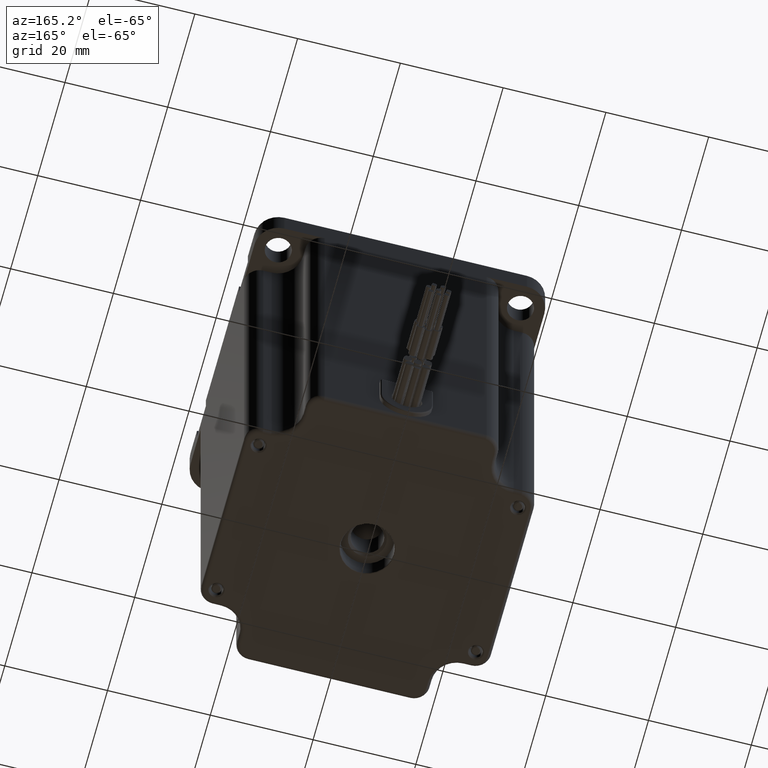
[diagram: clean part render]
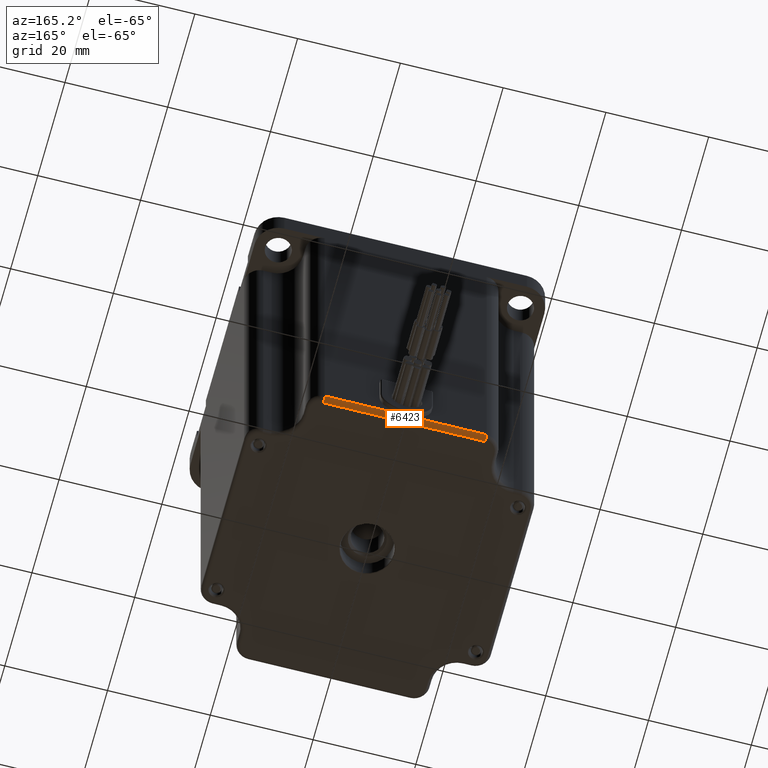
[diagram: same view with one face highlighted and labeled with its STEP entity id]
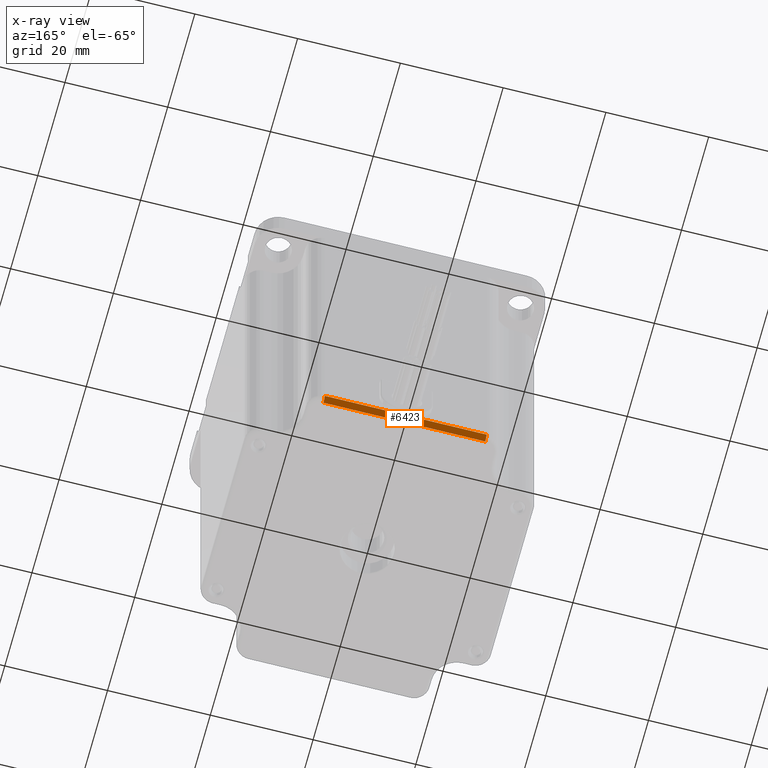
[diagram: x-ray of the same camera — body ghosted, the highlighted face saturated]
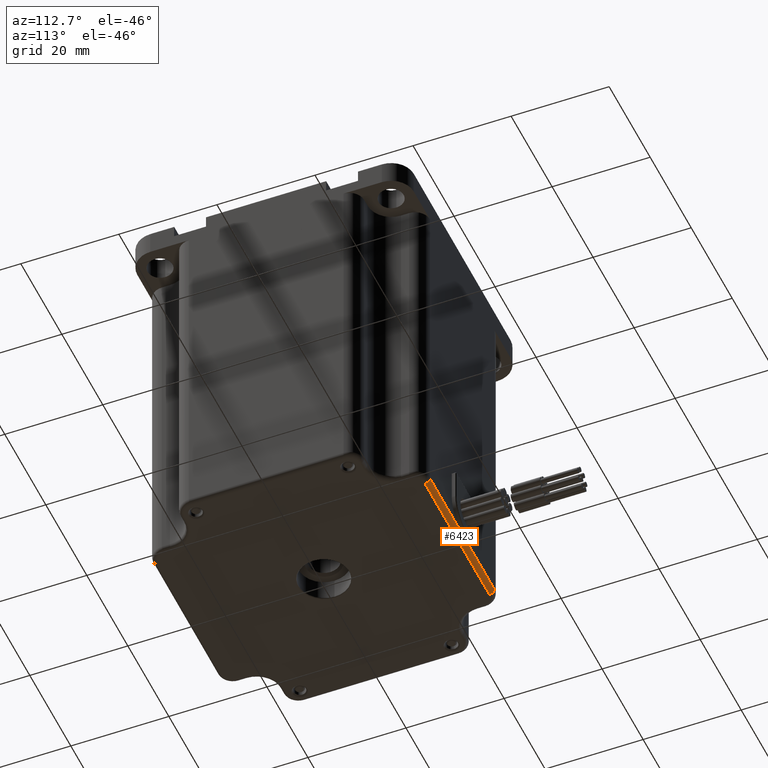
[diagram: same view with one face highlighted and labeled with its STEP entity id]
A machine part, auxiliary view. The second image highlights one B-rep face of the part: STEP entity #6423.
The next image is the same camera in x-ray: the body ghosted, the highlighted face saturated — about 0% of this face is hidden behind the body in this view.
A second angle (auxiliary view) of the same face is appended — the face is thin or edge-on in the first view.
In plain terms, the highlighted cylindrical surface (edge-blend (fillet) strip) has radius 1 mm, axis along (1, 0, 0).
Its self-contained STEP definition (entity closure, byte-faithful):
#46 = CARTESIAN_POINT ( 'NONE',  ( 15.74999999999999300, 27.19999999999999900, -40.00000000000000000 ) ) ;
#491 = AXIS2_PLACEMENT_3D ( 'NONE', #8000, #1451, #11725 ) ;
#546 = DIRECTION ( 'NONE',  ( -1.000000000000000000, -3.469446951953610600E-015, -0.0000000000000000000 ) ) ;
#662 = VECTOR ( 'NONE', #8088, 1000.000000000000000 ) ;
#696 = AXIS2_PLACEMENT_3D ( 'NONE', #7109, #546, #8780 ) ;
#750 = VERTEX_POINT ( 'NONE', #8514 ) ;
#1451 = DIRECTION ( 'NONE',  ( 1.000000000000000000, 1.968480540115533700E-015, -0.0000000000000000000 ) ) ;
#1703 = VERTEX_POINT ( 'NONE', #6415 ) ;
#1771 = EDGE_CURVE ( 'NONE', #1703, #750, #11240, .T. ) ;
#1907 = EDGE_LOOP ( 'NONE', ( #11012, #3315, #9450, #9837 ) ) ;
#2214 = CARTESIAN_POINT ( 'NONE',  ( 15.74999999999999300, 27.19999999999999900, -41.00000000000000000 ) ) ;
#3315 = ORIENTED_EDGE ( 'NONE', *, *, #8850, .F. ) ;
#3644 = VERTEX_POINT ( 'NONE', #7957 ) ;
#3646 = VECTOR ( 'NONE', #9690, 1000.000000000000000 ) ;
#4014 = FACE_OUTER_BOUND ( 'NONE', #1907, .T. ) ;
#4075 = CIRCLE ( 'NONE', #696, 1.000000000000000900 ) ;
#4881 = DIRECTION ( 'NONE',  ( -1.000000000000000000, -3.469446951953610600E-015, -0.0000000000000000000 ) ) ;
#5283 = EDGE_CURVE ( 'NONE', #1703, #9419, #6227, .T. ) ;
#5871 = CARTESIAN_POINT ( 'NONE',  ( -15.75000000000001100, 28.19999999999993500, -40.00000000000000000 ) ) ;
#6227 = LINE ( 'NONE', #10858, #662 ) ;
#6415 = CARTESIAN_POINT ( 'NONE',  ( 15.74999999999998900, 28.19999999999999900, -40.00000000000000000 ) ) ;
#6423 = ADVANCED_FACE ( 'NONE', ( #4014 ), #11475, .T. ) ;
#7109 = CARTESIAN_POINT ( 'NONE',  ( -15.75000000000000700, 27.19999999999993500, -40.00000000000000000 ) ) ;
#7386 = AXIS2_PLACEMENT_3D ( 'NONE', #46, #4881, #9463 ) ;
#7957 = CARTESIAN_POINT ( 'NONE',  ( -15.75000000000000700, 27.19999999999993500, -41.00000000000000000 ) ) ;
#8000 = CARTESIAN_POINT ( 'NONE',  ( 28.19999999999976100, 27.20000000000002400, -40.00000000000000000 ) ) ;
#8088 = DIRECTION ( 'NONE',  ( -1.000000000000000000, -1.968480540115533700E-015, 0.0000000000000000000 ) ) ;
#8514 = CARTESIAN_POINT ( 'NONE',  ( 15.74999999999999300, 27.19999999999999900, -41.00000000000000000 ) ) ;
#8780 = DIRECTION ( 'NONE',  ( 3.469446951953611000E-015, -1.000000000000000000, 0.0000000000000000000 ) ) ;
#8850 = EDGE_CURVE ( 'NONE', #3644, #750, #10958, .T. ) ;
#9419 = VERTEX_POINT ( 'NONE', #5871 ) ;
#9450 = ORIENTED_EDGE ( 'NONE', *, *, #9525, .F. ) ;
#9463 = DIRECTION ( 'NONE',  ( 3.469446951953611000E-015, -1.000000000000000000, 0.0000000000000000000 ) ) ;
#9525 = EDGE_CURVE ( 'NONE', #9419, #3644, #4075, .T. ) ;
#9690 = DIRECTION ( 'NONE',  ( 1.000000000000000000, 1.968480540115533700E-015, -0.0000000000000000000 ) ) ;
#9837 = ORIENTED_EDGE ( 'NONE', *, *, #5283, .F. ) ;
#10858 = CARTESIAN_POINT ( 'NONE',  ( -15.75000000000001100, 28.19999999999993500, -40.00000000000000000 ) ) ;
#10958 = LINE ( 'NONE', #2214, #3646 ) ;
#11012 = ORIENTED_EDGE ( 'NONE', *, *, #1771, .T. ) ;
#11240 = CIRCLE ( 'NONE', #7386, 1.000000000000000900 ) ;
#11475 = CYLINDRICAL_SURFACE ( 'NONE', #491, 1.000000000000000900 ) ;
#11725 = DIRECTION ( 'NONE',  ( -3.469446951953611000E-015, 1.000000000000000000, 0.0000000000000000000 ) ) ;